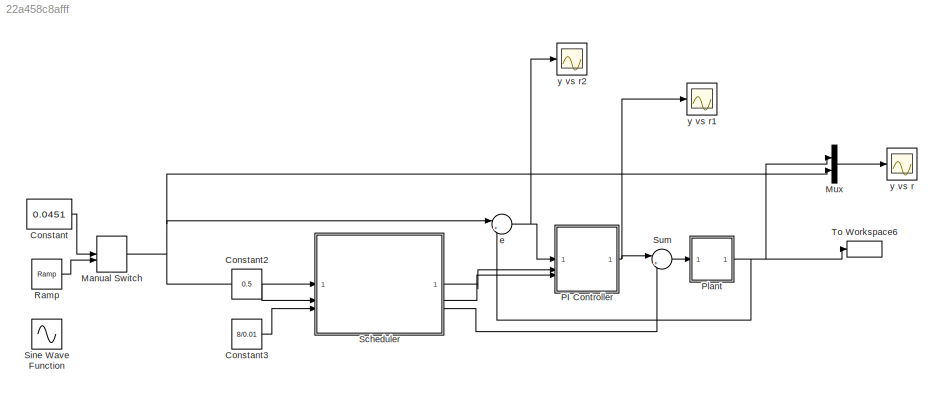
MODEL slx_22a458c8afff
KIND model
CONFIG AbsTol = auto
CONFIG EnableMultiTasking = off
CONFIG FixedStep = auto
CONFIG MaxStep = auto
CONFIG MinStep = auto
CONFIG RelTol = 1e-3
CONFIG SampleTimeConstraint = Unconstrained
CONFIG SolverName = VariableStepAuto
CONFIG StartTime = 0.0
CONFIG StopTime = 100
BLOCK [Constant] Constant
  Value = 0.0451
BLOCK [Constant] Constant2
  Value = 0.5
BLOCK [Constant] Constant3
  Value = 8/0.01
BLOCK [ManualSwitch] Manual Switch
  CurrentSetting = 0
BLOCK [Mux] Mux
  DisplayOption = bar
  Inputs = 2
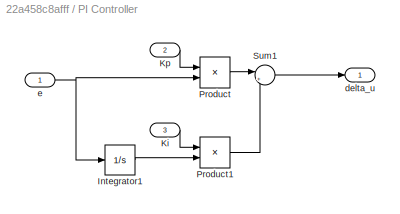
BLOCK [SubSystem] PI Controller
BLOCK [Integrator] PI Controller/Integrator1
BLOCK [Inport] PI Controller/Ki
  Port = 3
BLOCK [Inport] PI Controller/Kp
  Port = 2
BLOCK [Product] PI Controller/Product
BLOCK [Product] PI Controller/Product1
BLOCK [Sum] PI Controller/Sum1
  Inputs = |++
BLOCK [Outport] PI Controller/delta_u
BLOCK [Inport] PI Controller/e
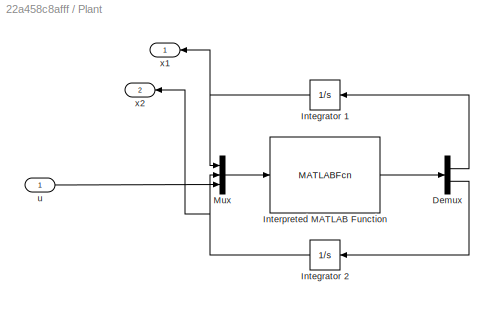
BLOCK [SubSystem] Plant
BLOCK [Demux] Plant/Demux
  Outputs = 2
BLOCK [Integrator] Plant/Integrator 1
  InitialCondition = x1_0
  NameLocation = top
BLOCK [Integrator] Plant/Integrator 2
  InitialCondition = x2_0
  NameLocation = top
BLOCK [MATLABFcn] Plant/Interpreted MATLAB Function
  MATLABFcn = SYS
  OutputDimensions = 2
BLOCK [Mux] Plant/Mux
  DisplayOption = bar
  Inputs = 3
BLOCK [Inport] Plant/u
BLOCK [Outport] Plant/x1
BLOCK [Outport] Plant/x2
  Port = 2
BLOCK [Reference] Ramp  REF=simulink/Sources/Ramp
  SourceBlock = simulink/Sources/Ramp
  SourceType = Ramp
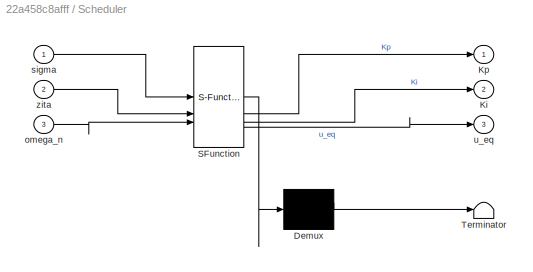
BLOCK [SubSystem] Scheduler
  ErrorFcn = Stateflow.Translate.translate
  PermitHierarchicalResolution = ExplicitOnly
  SFBlockType = MATLAB Function
  TreatAsAtomicUnit = on
BLOCK [Demux] Scheduler/ Demux 
  Outputs = 1
BLOCK [S-Function] Scheduler/ SFunction 
  EnableBusSupport = on
  FunctionName = sf_sfun
  PortCounts = [3 4]
  SFcnIsStateOwnerBlock = off
  SFunctionDeploymentMode = off
  Tag = Stateflow S-Function 2
BLOCK [Terminator] Scheduler/ Terminator 
BLOCK [Outport] Scheduler/Ki
  Port = 2
BLOCK [Outport] Scheduler/Kp
BLOCK [Inport] Scheduler/omega_n
  Port = 3
BLOCK [Inport] Scheduler/sigma
BLOCK [Outport] Scheduler/u_eq
  Port = 3
BLOCK [Inport] Scheduler/zita
  Port = 2
BLOCK [Sin] Sine Wave Function
  Amplitude = 0.001
  Bias = 0.0451
  Frequency = 0.1
  SampleTime = 0
BLOCK [Sum] Sum
  Inputs = |++
BLOCK [ToWorkspace] To Workspace6
  FixptAsFi = on
  MaxDataPoints = inf
  SampleTime = -1
  SaveFormat = Timeseries
  VariableName = y1
BLOCK [Sum] e
  Inputs = |+-
  NameLocation = top
BLOCK [Scope] y vs r
  Floating = off
  NumInputPorts = 1
  ScopeSpecificationString = Simulink.scopes.TimeScopeBlockCfg('CurrentConfiguration', extmgr.ConfigurationSet(extmgr.Configuration('Core','General UI',true),extmgr.Configuration('Core','Source UI',true),extmgr.Configuration('Sources','WiredSimulink',true),extmgr.Configuration('Visuals','Time Domain',true,'SerializedDisplays',{struct('MinYLimReal','-0.01127','MaxYLimReal','0.11','YLabelReal','','MinYLimMag','0.00000','MaxYLim...<+1624ch>
BLOCK [Scope] y vs r1
  Floating = off
  NumInputPorts = 1
  ScopeSpecificationString = Simulink.scopes.TimeScopeBlockCfg('CurrentConfiguration', extmgr.ConfigurationSet(extmgr.Configuration('Core','General UI',true),extmgr.Configuration('Core','Source UI',true),extmgr.Configuration('Sources','WiredSimulink',true,'DataLoggingVariableName','ScopeData1'),extmgr.Configuration('Visuals','Time Domain',true,'SerializedDisplays',{struct('MinYLimReal','-9.71964','MaxYLimReal','87.47673','YLa...<+1668ch>
BLOCK [Scope] y vs r2
  Floating = off
  NumInputPorts = 1
  ScopeSpecificationString = Simulink.scopes.TimeScopeBlockCfg('CurrentConfiguration', extmgr.ConfigurationSet(extmgr.Configuration('Core','General UI',true),extmgr.Configuration('Core','Source UI',true),extmgr.Configuration('Sources','WiredSimulink',true,'DataLoggingVariableName','ScopeData2'),extmgr.Configuration('Visuals','Time Domain',true,'SerializedDisplays',{struct('MinYLimReal','-0.0551','MaxYLimReal','-0.0351','YLabe...<+1648ch>
LINE Constant2:1 -> Scheduler:2
LINE Constant3:1 -> Scheduler:3
LINE Constant:1 -> Manual Switch:1
NET Manual Switch:1 -> Mux:2, Scheduler:1, e:1
LINE Mux:1 -> y vs r:1
LINE PI Controller/Integrator1:1 -> PI Controller/Product1:2
LINE PI Controller/Ki:1 -> PI Controller/Product1:1
LINE PI Controller/Kp:1 -> PI Controller/Product:1
LINE PI Controller/Product1:1 -> PI Controller/Sum1:2
LINE PI Controller/Product:1 -> PI Controller/Sum1:1
LINE PI Controller/Sum1:1 -> PI Controller/delta_u:1
NET PI Controller/e:1 -> PI Controller/Integrator1:1, PI Controller/Product:2
NET PI Controller:1 -> Sum:1, y vs r1:1
LINE Plant/Demux:1 -> Plant/Integrator 1:1
LINE Plant/Demux:2 -> Plant/Integrator 2:1
NET Plant/Integrator 1:1 -> Plant/Mux:1, Plant/x1:1
NET Plant/Integrator 2:1 -> Plant/Mux:2, Plant/x2:1
LINE Plant/Interpreted MATLAB Function:1 -> Plant/Demux:1
LINE Plant/Mux:1 -> Plant/Interpreted MATLAB Function:1
LINE Plant/u:1 -> Plant/Mux:3
NET Plant:1 -> Mux:1, To Workspace6:1, e:2
LINE Ramp:1 -> Manual Switch:2
LINE Scheduler:1 -> PI Controller:2
LINE Scheduler:2 -> PI Controller:3
LINE Scheduler:3 -> Sum:2
LINE Sum:1 -> Plant:1
NET e:1 -> PI Controller:1, y vs r2:1
note: NET lines group one-source signal fan-out (src -> all destinations, sorted); 1:1 wires keep LINE
CHART Scheduler states=1 transitions=1
  STATE_LABEL 'eML_blk_kernel()'
  STATE_LABEL 'SCRIPT:\nfunction [Kp,Ki,u_eq] = compute_gains(sigma, zita, omega_n)\n    Kp=-200;\n    Ki=0.01;\n    u_eq = -(399496308545527218176*sigma - 412936040625518808125)/(8736983277098762240000*sigma);\nend'
CHART  states=0 transitions=0
